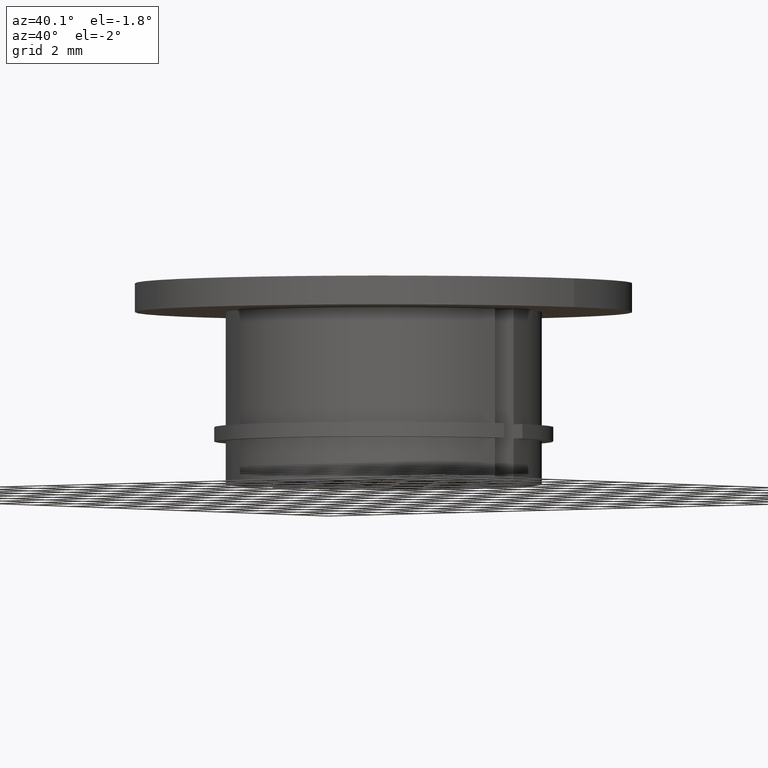
[diagram: clean part render]
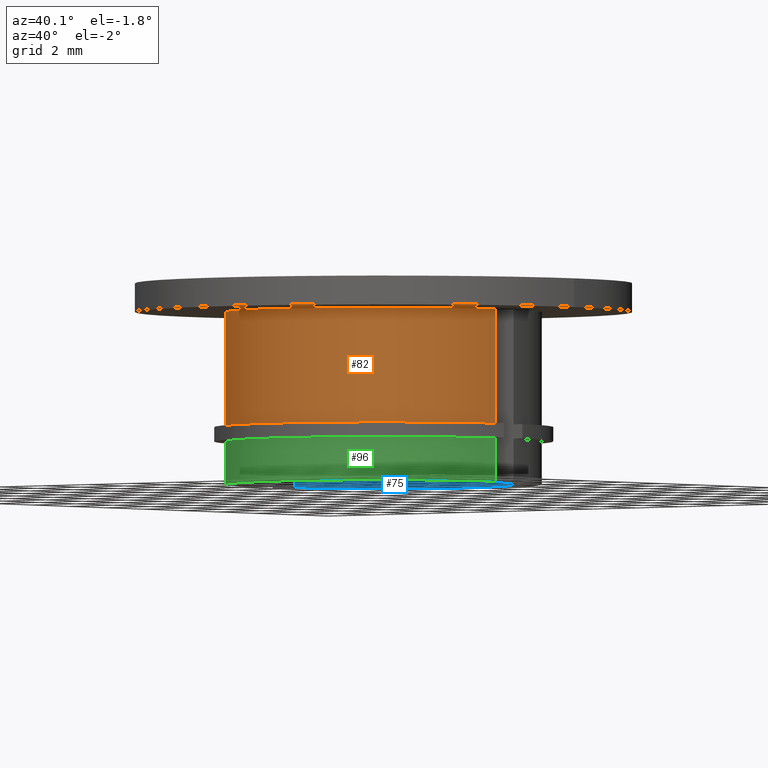
[diagram: same view with three faces highlighted in distinct colors, each labeled with its STEP entity id]
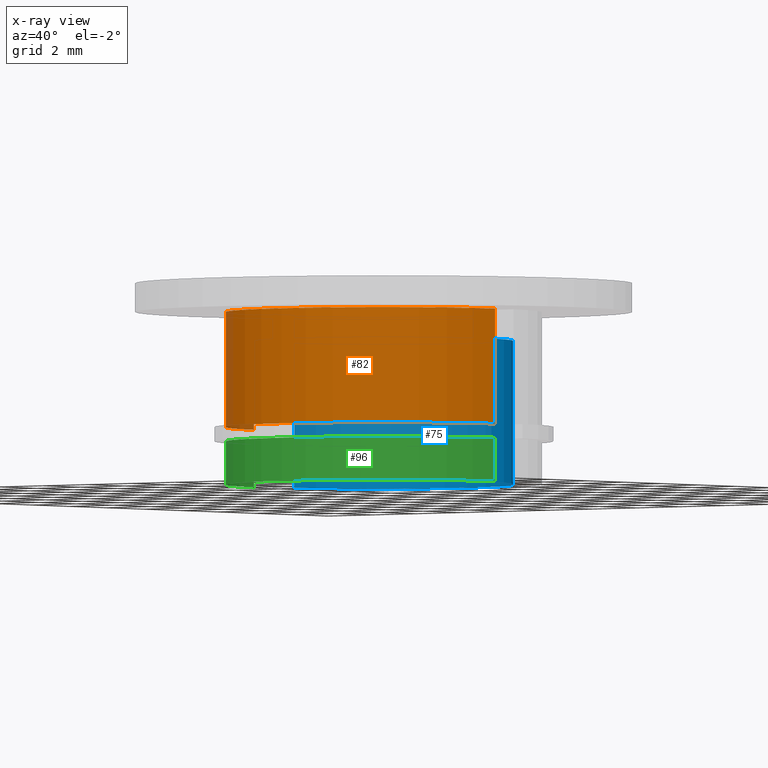
[diagram: x-ray of the same camera — body ghosted, the three highlighted faces saturated]
A machine part, auxiliary view with three faces highlighted in distinct colors.
The next image is the same camera in x-ray (body ghosted, the three faces saturated) — at least one of them is partly hidden behind the body in this view.
Their STEP definitions:

[orange] entity #82 — the highlighted cylindrical surface (partial cylindrical patch) has radius 5.5 mm, axis along (0, 0, -1).
#82 = ADVANCED_FACE( '', ( #115 ), #116, .T. );
#115 = FACE_OUTER_BOUND( '', #165, .T. );
#116 = CYLINDRICAL_SURFACE( '', #166, 5.50000000000000 );
#165 = EDGE_LOOP( '', ( #269, #270, #271, #272 ) );
#166 = AXIS2_PLACEMENT_3D( '', #273, #274, #275 );
#269 = ORIENTED_EDGE( '', *, *, #425, .F. );
#270 = ORIENTED_EDGE( '', *, *, #420, .T. );
#271 = ORIENTED_EDGE( '', *, *, #413, .F. );
#272 = ORIENTED_EDGE( '', *, *, #396, .F. );
#273 = CARTESIAN_POINT( '', ( 0.000000000000000, 0.000000000000000, 6.00000000000000 ) );
#274 = DIRECTION( '', ( 6.12303176911189E-017, 0.000000000000000, -1.00000000000000 ) );
#275 = DIRECTION( '', ( 1.00000000000000, 0.000000000000000, 6.12303176911189E-017 ) );
#396 = EDGE_CURVE( '', #461, #463, #464, .T. );
#413 = EDGE_CURVE( '', #463, #493, #494, .F. );
#420 = EDGE_CURVE( '', #503, #493, #506, .T. );
#425 = EDGE_CURVE( '', #503, #461, #515, .T. );
#461 = VERTEX_POINT( '', #560 );
#463 = VERTEX_POINT( '', #563 );
#464 = CIRCLE( '', #564, 5.50000000000000 );
#493 = VERTEX_POINT( '', #606 );
#494 = LINE( '', #607, #608 );
#503 = VERTEX_POINT( '', #621 );
#506 = CIRCLE( '', #625, 5.49999999999999 );
#515 = LINE( '', #638, #639 );
#560 = CARTESIAN_POINT( '', ( -5.47722557505166, -0.499999999999998, 6.00000000000000 ) );
#563 = CARTESIAN_POINT( '', ( 5.47722557505166, -0.499999999999996, 6.00000000000000 ) );
#564 = AXIS2_PLACEMENT_3D( '', #690, #691, #692 );
#606 = CARTESIAN_POINT( '', ( 5.47722557505166, -0.499999999999996, 2.00000000000000 ) );
#607 = CARTESIAN_POINT( '', ( 5.47722557505166, -0.499999999999996, 6.00000000000000 ) );
#608 = VECTOR( '', #715, 1000.00000000000 );
#621 = CARTESIAN_POINT( '', ( -5.47722557505166, -0.499999999999998, 2.00000000000000 ) );
#625 = AXIS2_PLACEMENT_3D( '', #724, #725, #726 );
#638 = CARTESIAN_POINT( '', ( -5.47722557505166, -0.499999999999998, 6.00000000000000 ) );
#639 = VECTOR( '', #731, 1000.00000000000 );
#690 = CARTESIAN_POINT( '', ( -1.59326504310453E-031, 0.000000000000000, 6.00000000000000 ) );
#691 = DIRECTION( '', ( -6.12303176911189E-017, 0.000000000000000, 1.00000000000000 ) );
#692 = DIRECTION( '', ( 1.00000000000000, 0.000000000000000, 6.12303176911189E-017 ) );
#715 = DIRECTION( '', ( -6.12303176911189E-017, 0.000000000000000, 1.00000000000000 ) );
#724 = CARTESIAN_POINT( '', ( 2.44921270764475E-016, 0.000000000000000, 2.00000000000000 ) );
#725 = DIRECTION( '', ( -6.12303176911189E-017, 0.000000000000000, 1.00000000000000 ) );
#726 = DIRECTION( '', ( 1.00000000000000, 0.000000000000000, 6.12303176911189E-017 ) );
#731 = DIRECTION( '', ( -6.12303176911189E-017, 0.000000000000000, 1.00000000000000 ) );

[blue] entity #75 — the highlighted cylindrical surface (partial cylindrical patch) has radius 4.5 mm, axis along (0, 0, -1).
#75 = ADVANCED_FACE( '', ( #100 ), #101, .F. );
#100 = FACE_OUTER_BOUND( '', #150, .T. );
#101 = CYLINDRICAL_SURFACE( '', #151, 4.50000000000000 );
#150 = EDGE_LOOP( '', ( #200, #201, #202, #203 ) );
#151 = AXIS2_PLACEMENT_3D( '', #204, #205, #206 );
#200 = ORIENTED_EDGE( '', *, *, #388, .F. );
#201 = ORIENTED_EDGE( '', *, *, #389, .F. );
#202 = ORIENTED_EDGE( '', *, *, #390, .T. );
#203 = ORIENTED_EDGE( '', *, *, #391, .T. );
#204 = CARTESIAN_POINT( '', ( 0.000000000000000, 0.000000000000000, 6.00000000000000 ) );
#205 = DIRECTION( '', ( 6.12303176911189E-017, 0.000000000000000, -1.00000000000000 ) );
#206 = DIRECTION( '', ( 1.00000000000000, 0.000000000000000, 6.12303176911189E-017 ) );
#388 = EDGE_CURVE( '', #446, #447, #448, .T. );
#389 = EDGE_CURVE( '', #449, #446, #450, .T. );
#390 = EDGE_CURVE( '', #449, #451, #452, .T. );
#391 = EDGE_CURVE( '', #451, #447, #453, .T. );
#446 = VERTEX_POINT( '', #542 );
#447 = VERTEX_POINT( '', #543 );
#448 = LINE( '', #544, #545 );
#449 = VERTEX_POINT( '', #546 );
#450 = CIRCLE( '', #547, 4.50000000000000 );
#451 = VERTEX_POINT( '', #548 );
#452 = LINE( '', #549, #550 );
#453 = CIRCLE( '', #551, 4.50000000000001 );
#542 = CARTESIAN_POINT( '', ( -4.47213595499959, 0.500000000000002, 1.73472347597681E-015 ) );
#543 = CARTESIAN_POINT( '', ( -4.47213595499959, 0.500000000000002, 5.00000000000000 ) );
#544 = CARTESIAN_POINT( '', ( -4.47213595499959, 0.500000000000002, -6.00000000017099 ) );
#545 = VECTOR( '', #674, 1000.00000000000 );
#546 = CARTESIAN_POINT( '', ( 4.47213595499958, 0.500000000000004, 1.73472347597681E-015 ) );
#547 = AXIS2_PLACEMENT_3D( '', #675, #676, #677 );
#548 = CARTESIAN_POINT( '', ( 4.47213595499958, 0.500000000000004, 5.00000000000000 ) );
#549 = CARTESIAN_POINT( '', ( 4.47213595499958, 0.500000000000004, -6.00000000017099 ) );
#550 = VECTOR( '', #678, 1000.00000000000 );
#551 = AXIS2_PLACEMENT_3D( '', #679, #680, #681 );
#674 = DIRECTION( '', ( -6.12303176911189E-017, 0.000000000000000, 1.00000000000000 ) );
#675 = CARTESIAN_POINT( '', ( 3.67381906146713E-016, 0.000000000000000, 3.46944695195361E-015 ) );
#676 = DIRECTION( '', ( -6.12303176911189E-017, 0.000000000000000, 1.00000000000000 ) );
#677 = DIRECTION( '', ( 1.00000000000000, 0.000000000000000, 6.12303176911189E-017 ) );
#678 = DIRECTION( '', ( -6.12303176911189E-017, 0.000000000000000, 1.00000000000000 ) );
#679 = CARTESIAN_POINT( '', ( 6.12303176911189E-017, 0.000000000000000, 5.00000000000000 ) );
#680 = DIRECTION( '', ( -6.12303176911189E-017, 0.000000000000000, 1.00000000000000 ) );
#681 = DIRECTION( '', ( 1.00000000000000, 0.000000000000000, 6.12303176911189E-017 ) );

[green] entity #96 — the highlighted cylindrical surface (partial cylindrical patch) has radius 5.5 mm, axis along (0, 0, -1).
#96 = ADVANCED_FACE( '', ( #144 ), #145, .T. );
#144 = FACE_OUTER_BOUND( '', #194, .T. );
#145 = CYLINDRICAL_SURFACE( '', #195, 5.49999999999999 );
#194 = EDGE_LOOP( '', ( #367, #368, #369, #370 ) );
#195 = AXIS2_PLACEMENT_3D( '', #371, #372, #373 );
#367 = ORIENTED_EDGE( '', *, *, #422, .F. );
#368 = ORIENTED_EDGE( '', *, *, #445, .T. );
#369 = ORIENTED_EDGE( '', *, *, #417, .F. );
#370 = ORIENTED_EDGE( '', *, *, #443, .F. );
#371 = CARTESIAN_POINT( '', ( 0.000000000000000, 0.000000000000000, 6.00000000000000 ) );
#372 = DIRECTION( '', ( 6.12303176911189E-017, 0.000000000000000, -1.00000000000000 ) );
#373 = DIRECTION( '', ( 1.00000000000000, 0.000000000000000, 6.12303176911189E-017 ) );
#417 = EDGE_CURVE( '', #499, #487, #501, .F. );
#422 = EDGE_CURVE( '', #508, #510, #511, .T. );
#443 = EDGE_CURVE( '', #510, #499, #539, .T. );
#445 = EDGE_CURVE( '', #508, #487, #541, .T. );
#487 = VERTEX_POINT( '', #597 );
#499 = VERTEX_POINT( '', #615 );
#501 = LINE( '', #618, #619 );
#508 = VERTEX_POINT( '', #627 );
#510 = VERTEX_POINT( '', #630 );
#511 = LINE( '', #631, #632 );
#539 = CIRCLE( '', #671, 5.50000000000000 );
#541 = CIRCLE( '', #673, 5.49999999999999 );
#597 = CARTESIAN_POINT( '', ( 5.47722557505166, -0.499999999999996, 0.000000000000000 ) );
#615 = CARTESIAN_POINT( '', ( 5.47722557505166, -0.499999999999996, 1.50000000000000 ) );
#618 = CARTESIAN_POINT( '', ( 5.47722557505166, -0.499999999999996, 6.00000000000000 ) );
#619 = VECTOR( '', #719, 1000.00000000000 );
#627 = CARTESIAN_POINT( '', ( -5.47722557505166, -0.499999999999998, 0.000000000000000 ) );
#630 = CARTESIAN_POINT( '', ( -5.47722557505166, -0.499999999999998, 1.50000000000000 ) );
#631 = CARTESIAN_POINT( '', ( -5.47722557505166, -0.499999999999998, 6.00000000000000 ) );
#632 = VECTOR( '', #728, 1000.00000000000 );
#671 = AXIS2_PLACEMENT_3D( '', #767, #768, #769 );
#673 = AXIS2_PLACEMENT_3D( '', #773, #774, #775 );
#719 = DIRECTION( '', ( -6.12303176911189E-017, 0.000000000000000, 1.00000000000000 ) );
#728 = DIRECTION( '', ( -6.12303176911189E-017, 0.000000000000000, 1.00000000000000 ) );
#767 = CARTESIAN_POINT( '', ( 2.75536429610035E-016, 0.000000000000000, 1.50000000000000 ) );
#768 = DIRECTION( '', ( -6.12303176911189E-017, 0.000000000000000, 1.00000000000000 ) );
#769 = DIRECTION( '', ( 1.00000000000000, 0.000000000000000, 6.12303176911189E-017 ) );
#773 = CARTESIAN_POINT( '', ( 3.67381906146713E-016, 0.000000000000000, 0.000000000000000 ) );
#774 = DIRECTION( '', ( -6.12303176911189E-017, 0.000000000000000, 1.00000000000000 ) );
#775 = DIRECTION( '', ( 1.00000000000000, 0.000000000000000, 6.12303176911189E-017 ) );